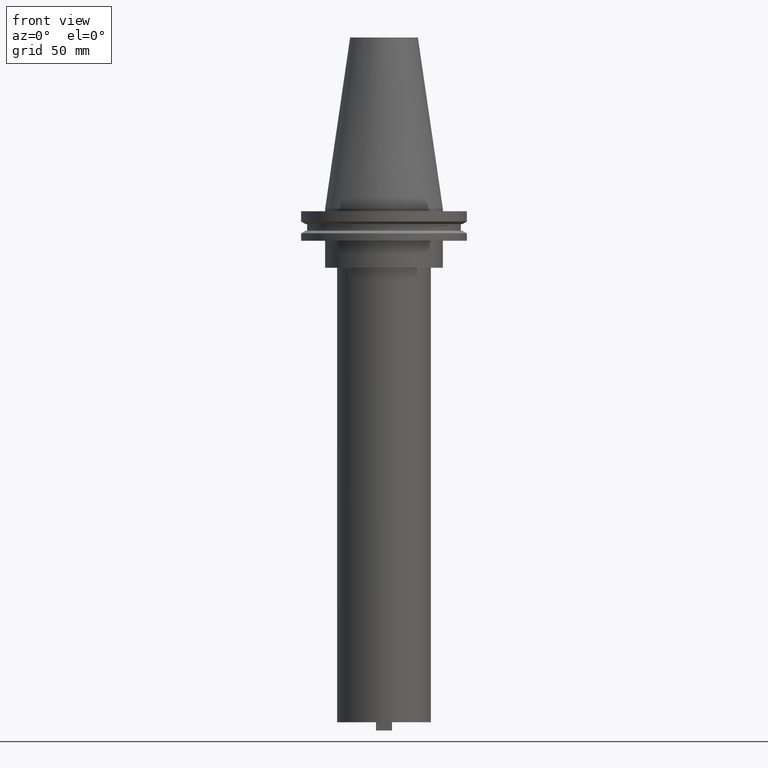
[diagram: clean part render]
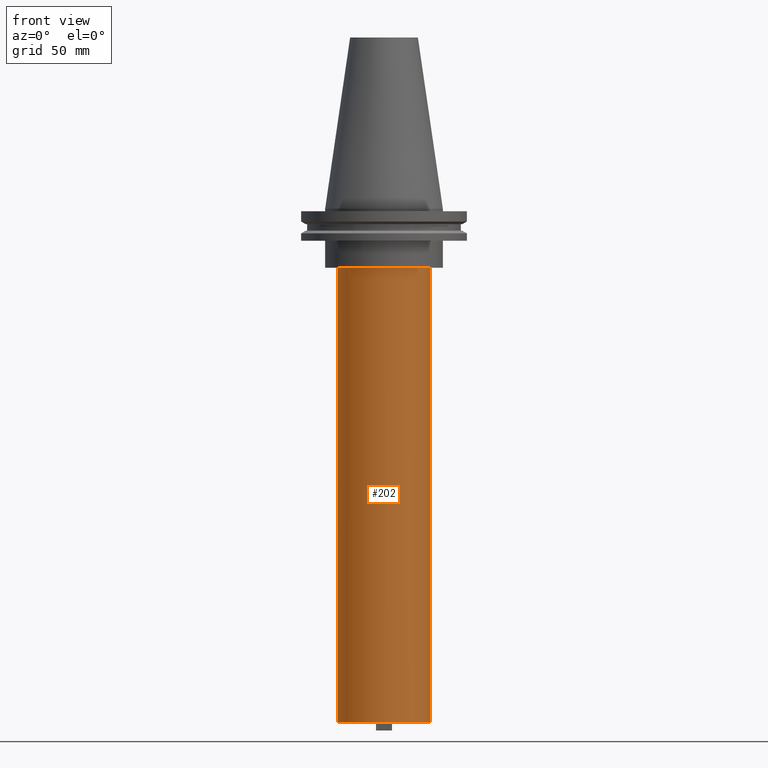
[diagram: same view with one face highlighted and labeled with its STEP entity id]
A machine part, front view. The second image highlights one B-rep face of the part: STEP entity #202.
In plain terms, the highlighted cylindrical surface (partial cylindrical patch) has radius 27.8 mm, axis along (-0, -0, 1).
Its self-contained STEP definition (entity closure, byte-faithful):
#28 = CARTESIAN_POINT ( 'NONE',  ( 27.80000000000000426, 0.000000000000000000, -35.04999999999999716 ) ) ;
#37 = DIRECTION ( 'NONE',  ( -0.000000000000000000, -0.000000000000000000, 1.000000000000000000 ) ) ;
#52 = LINE ( 'NONE', #983, #473 ) ;
#76 = CIRCLE ( 'NONE', #208, 27.80000000000000071 ) ;
#82 = ORIENTED_EDGE ( 'NONE', *, *, #544, .F. ) ;
#164 = DIRECTION ( 'NONE',  ( 1.000000000000000000, 0.000000000000000000, 0.000000000000000000 ) ) ;
#181 = VERTEX_POINT ( 'NONE', #267 ) ;
#184 = DIRECTION ( 'NONE',  ( 0.000000000000000000, 0.000000000000000000, -1.000000000000000000 ) ) ;
#202 = ADVANCED_FACE ( 'NONE', ( #384 ), #1049, .T. ) ;
#208 = AXIS2_PLACEMENT_3D ( 'NONE', #816, #224, #164 ) ;
#219 = ORIENTED_EDGE ( 'NONE', *, *, #893, .T. ) ;
#224 = DIRECTION ( 'NONE',  ( -0.000000000000000000, -0.000000000000000000, 1.000000000000000000 ) ) ;
#246 = ORIENTED_EDGE ( 'NONE', *, *, #625, .T. ) ;
#254 = CARTESIAN_POINT ( 'NONE',  ( -27.80000000000000071, 3.404518101629642167E-15, -304.8000000000000682 ) ) ;
#267 = CARTESIAN_POINT ( 'NONE',  ( 27.80000000000000071, 0.000000000000000000, -304.8000000000000682 ) ) ;
#269 = VERTEX_POINT ( 'NONE', #28 ) ;
#309 = DIRECTION ( 'NONE',  ( -0.000000000000000000, -0.000000000000000000, 1.000000000000000000 ) ) ;
#354 = VECTOR ( 'NONE', #37, 1000.000000000000000 ) ;
#384 = FACE_OUTER_BOUND ( 'NONE', #662, .T. ) ;
#448 = DIRECTION ( 'NONE',  ( 1.000000000000000000, 0.000000000000000000, 0.000000000000000000 ) ) ;
#473 = VECTOR ( 'NONE', #309, 1000.000000000000000 ) ;
#486 = ORIENTED_EDGE ( 'NONE', *, *, #1080, .T. ) ;
#527 = DIRECTION ( 'NONE',  ( 1.000000000000000000, 0.000000000000000000, 0.000000000000000000 ) ) ;
#544 = EDGE_CURVE ( 'NONE', #708, #571, #787, .T. ) ;
#550 = CARTESIAN_POINT ( 'NONE',  ( -27.80000000000000426, 3.404518101629642562E-15, 0.000000000000000000 ) ) ;
#571 = VERTEX_POINT ( 'NONE', #644 ) ;
#625 = EDGE_CURVE ( 'NONE', #181, #269, #52, .T. ) ;
#644 = CARTESIAN_POINT ( 'NONE',  ( -27.80000000000000426, 3.404518101629642562E-15, -35.04999999999999716 ) ) ;
#652 = CIRCLE ( 'NONE', #930, 27.80000000000000426 ) ;
#662 = EDGE_LOOP ( 'NONE', ( #82, #486, #246, #219 ) ) ;
#708 = VERTEX_POINT ( 'NONE', #254 ) ;
#776 = CARTESIAN_POINT ( 'NONE',  ( 0.000000000000000000, 0.000000000000000000, -35.04999999999999716 ) ) ;
#787 = LINE ( 'NONE', #550, #354 ) ;
#794 = CARTESIAN_POINT ( 'NONE',  ( 0.000000000000000000, 0.000000000000000000, 0.000000000000000000 ) ) ;
#816 = CARTESIAN_POINT ( 'NONE',  ( 0.000000000000000000, 0.000000000000000000, -304.8000000000000682 ) ) ;
#821 = AXIS2_PLACEMENT_3D ( 'NONE', #794, #880, #448 ) ;
#880 = DIRECTION ( 'NONE',  ( -0.000000000000000000, -0.000000000000000000, 1.000000000000000000 ) ) ;
#893 = EDGE_CURVE ( 'NONE', #269, #571, #652, .T. ) ;
#930 = AXIS2_PLACEMENT_3D ( 'NONE', #776, #184, #527 ) ;
#983 = CARTESIAN_POINT ( 'NONE',  ( 27.80000000000000426, 0.000000000000000000, 0.000000000000000000 ) ) ;
#1049 = CYLINDRICAL_SURFACE ( 'NONE', #821, 27.80000000000000426 ) ;
#1080 = EDGE_CURVE ( 'NONE', #708, #181, #76, .T. ) ;